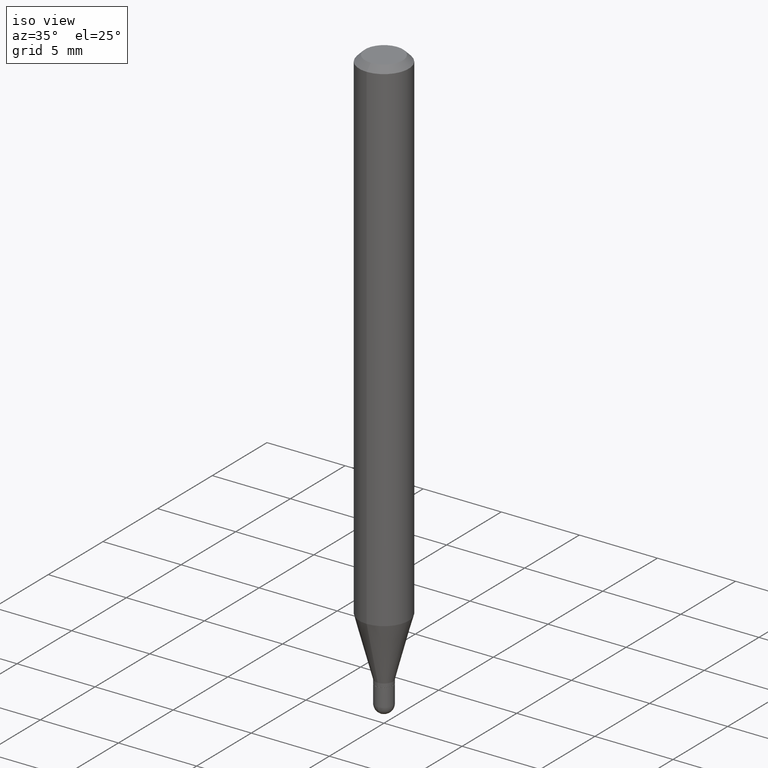
[diagram: clean part render]
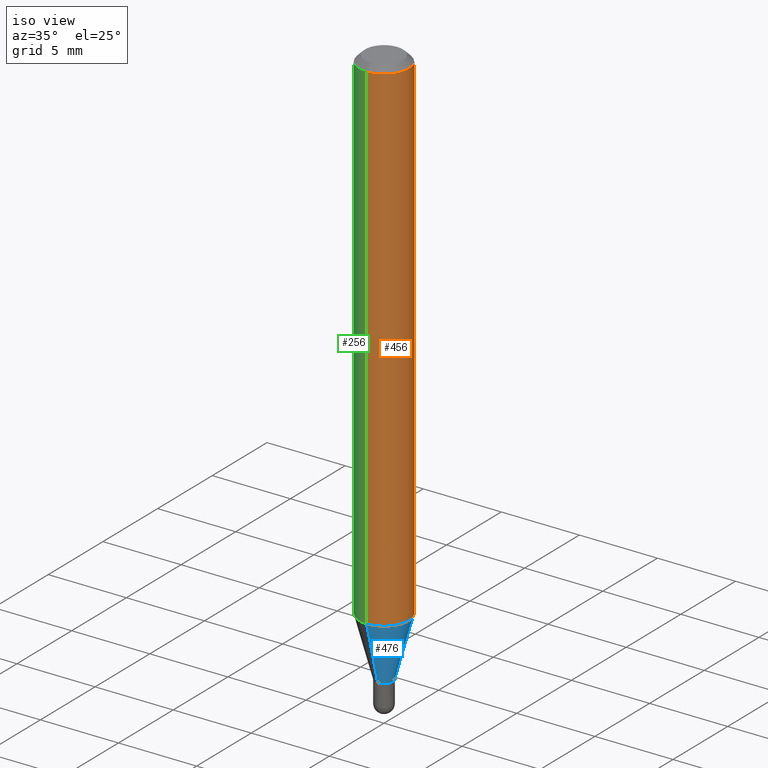
[diagram: same view with three faces highlighted in distinct colors, each labeled with its STEP entity id]
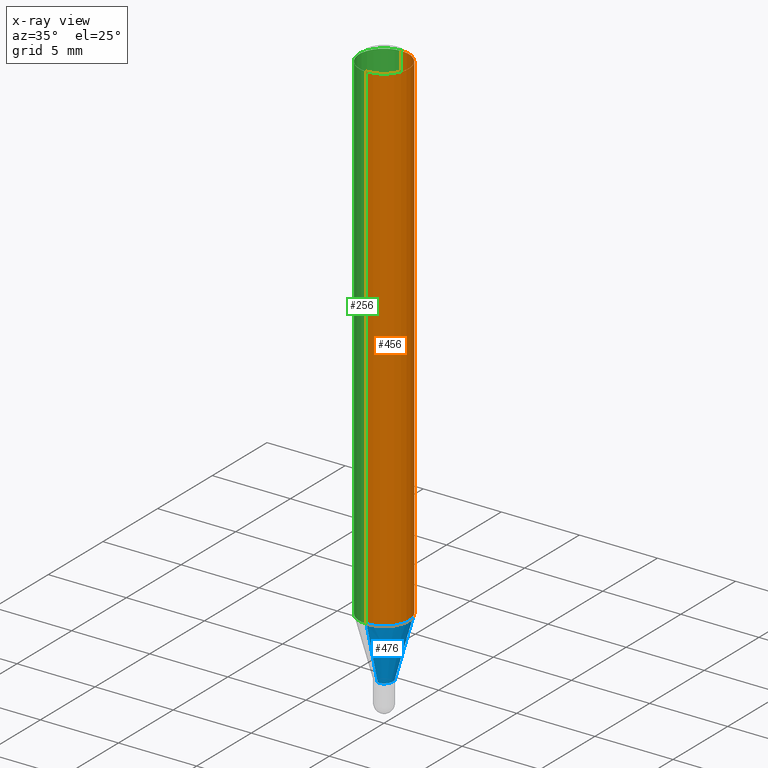
[diagram: x-ray of the same camera — body ghosted, the three highlighted faces saturated]
A machine part, iso view with three faces highlighted in distinct colors.
The next image is the same camera in x-ray (body ghosted, the three faces saturated) — at least one of them is partly hidden behind the body in this view.
Their STEP definitions:

[orange] entity #456 — the highlighted cylindrical surface (edge-blend (fillet) strip) has radius 1.5875 mm, axis along (-0, 0, 1).
#27 = LINE ( 'NONE', #266, #151 ) ;
#30 = DIRECTION ( 'NONE',  ( -2.445453483814696370E-29, 3.491503281349710477E-15, 1.000000000000000000 ) ) ;
#65 = DIRECTION ( 'NONE',  ( -2.445453483814696650E-29, 3.491503281349710871E-15, 1.000000000000000000 ) ) ;
#95 = ORIENTED_EDGE ( 'NONE', *, *, #115, .T. ) ;
#107 = EDGE_CURVE ( 'NONE', #304, #437, #463, .T. ) ;
#113 = DIRECTION ( 'NONE',  ( -2.445453483814696370E-29, 3.491503281349710477E-15, 1.000000000000000000 ) ) ;
#114 = EDGE_CURVE ( 'NONE', #437, #307, #487, .T. ) ;
#115 = EDGE_CURVE ( 'NONE', #272, #307, #27, .T. ) ;
#119 = CARTESIAN_POINT ( 'NONE',  ( 3.668180225722047042E-31, -5.237254922024569684E-17, -0.01500000000000000812 ) ) ;
#120 = EDGE_CURVE ( 'NONE', #304, #272, #127, .T. ) ;
#127 = CIRCLE ( 'NONE', #337, 0.06250000000000000000 ) ;
#136 = ORIENTED_EDGE ( 'NONE', *, *, #114, .F. ) ;
#141 = CARTESIAN_POINT ( 'NONE',  ( -4.364351673553605587E-16, -0.06250000000000446865, -1.272717967697244879 ) ) ;
#151 = VECTOR ( 'NONE', #30, 39.37007874015748143 ) ;
#194 = CARTESIAN_POINT ( 'NONE',  ( -4.364351673553916201E-16, -0.06250000000000000000, 2.182189550843569295E-16 ) ) ;
#227 = AXIS2_PLACEMENT_3D ( 'NONE', #406, #65, #374 ) ;
#247 = VECTOR ( 'NONE', #113, 39.37007874015748143 ) ;
#251 = FACE_OUTER_BOUND ( 'NONE', #448, .T. ) ;
#257 = CYLINDRICAL_SURFACE ( 'NONE', #227, 0.06250000000000000000 ) ;
#264 = DIRECTION ( 'NONE',  ( -6.982962677686265922E-15, -1.000000000000000000, 4.370956789862821150E-15 ) ) ;
#266 = CARTESIAN_POINT ( 'NONE',  ( 4.440892098500625669E-16, 0.06250000000000000000, -2.182189550843569295E-16 ) ) ;
#268 = DIRECTION ( 'NONE',  ( -6.982962677686265922E-15, -1.000000000000000000, 3.483106191921935554E-15 ) ) ;
#272 = VERTEX_POINT ( 'NONE', #431 ) ;
#282 = ORIENTED_EDGE ( 'NONE', *, *, #120, .T. ) ;
#304 = VERTEX_POINT ( 'NONE', #141 ) ;
#307 = VERTEX_POINT ( 'NONE', #309 ) ;
#309 = CARTESIAN_POINT ( 'NONE',  ( 4.440892098500938748E-16, 0.06249999999999995143, -0.01500000000000022669 ) ) ;
#337 = AXIS2_PLACEMENT_3D ( 'NONE', #506, #509, #264 ) ;
#345 = DIRECTION ( 'NONE',  ( -2.445453483814696650E-29, 3.491503281349710871E-15, 1.000000000000000000 ) ) ;
#366 = AXIS2_PLACEMENT_3D ( 'NONE', #119, #345, #268 ) ;
#374 = DIRECTION ( 'NONE',  ( -6.982962677686265922E-15, -1.000000000000000000, 3.491503281349710871E-15 ) ) ;
#403 = CARTESIAN_POINT ( 'NONE',  ( -4.364351673553912750E-16, -0.06250000000000005551, -0.01499999999999979128 ) ) ;
#406 = CARTESIAN_POINT ( 'NONE',  ( 0.000000000000000000, 0.000000000000000000, 0.000000000000000000 ) ) ;
#431 = CARTESIAN_POINT ( 'NONE',  ( 4.440892098500934804E-16, 0.06249999999999552441, -1.272717967697245323 ) ) ;
#437 = VERTEX_POINT ( 'NONE', #403 ) ;
#448 = EDGE_LOOP ( 'NONE', ( #282, #95, #136, #503 ) ) ;
#456 = ADVANCED_FACE ( 'NONE', ( #251 ), #257, .T. ) ;
#463 = LINE ( 'NONE', #194, #247 ) ;
#487 = CIRCLE ( 'NONE', #366, 0.06250000000000000000 ) ;
#503 = ORIENTED_EDGE ( 'NONE', *, *, #107, .F. ) ;
#506 = CARTESIAN_POINT ( 'NONE',  ( 3.112372588018788415E-29, -4.443698960447666136E-15, -1.272717967697245101 ) ) ;
#509 = DIRECTION ( 'NONE',  ( -2.445453483814696650E-29, 3.491503281349710871E-15, 1.000000000000000000 ) ) ;

[blue] entity #476 — the highlighted conical surface has half-angle 15 deg.
#7 = ORIENTED_EDGE ( 'NONE', *, *, #211, .T. ) ;
#35 = VERTEX_POINT ( 'NONE', #381 ) ;
#41 = DIRECTION ( 'NONE',  ( -2.445453483814696650E-29, 3.491503281349710871E-15, 1.000000000000000000 ) ) ;
#54 = CONICAL_SURFACE ( 'NONE', #338, 0.02249999999999992284, 0.2617993877991501850 ) ;
#86 = LINE ( 'NONE', #321, #184 ) ;
#96 = CARTESIAN_POINT ( 'NONE',  ( 3.477434853984498792E-29, -4.964917666079289366E-15, -1.421999999999999931 ) ) ;
#99 = AXIS2_PLACEMENT_3D ( 'NONE', #229, #41, #353 ) ;
#120 = EDGE_CURVE ( 'NONE', #304, #272, #127, .T. ) ;
#121 = ORIENTED_EDGE ( 'NONE', *, *, #120, .F. ) ;
#126 = EDGE_LOOP ( 'NONE', ( #491, #7, #121, #404 ) ) ;
#127 = CIRCLE ( 'NONE', #337, 0.06250000000000000000 ) ;
#141 = CARTESIAN_POINT ( 'NONE',  ( -4.364351673553605587E-16, -0.06250000000000446865, -1.272717967697244879 ) ) ;
#148 = DIRECTION ( 'NONE',  ( -2.445453483814696650E-29, 3.491503281349710871E-15, 1.000000000000000000 ) ) ;
#149 = FACE_OUTER_BOUND ( 'NONE', #126, .T. ) ;
#153 = CARTESIAN_POINT ( 'NONE',  ( -1.571166602479056403E-16, -0.02250000000000488762, -1.421999999999999931 ) ) ;
#184 = VECTOR ( 'NONE', #474, 39.37007874015748143 ) ;
#207 = VERTEX_POINT ( 'NONE', #392 ) ;
#211 = EDGE_CURVE ( 'NONE', #207, #272, #86, .T. ) ;
#229 = CARTESIAN_POINT ( 'NONE',  ( 3.477434853984498792E-29, -4.964917666079289366E-15, -1.421999999999999931 ) ) ;
#253 = LINE ( 'NONE', #153, #277 ) ;
#264 = DIRECTION ( 'NONE',  ( -6.982962677686265922E-15, -1.000000000000000000, 4.370956789862821150E-15 ) ) ;
#272 = VERTEX_POINT ( 'NONE', #431 ) ;
#277 = VECTOR ( 'NONE', #449, 39.37007874015749564 ) ;
#291 = DIRECTION ( 'NONE',  ( -6.982962677686265133E-15, -1.000000000000000000, 0.000000000000000000 ) ) ;
#304 = VERTEX_POINT ( 'NONE', #141 ) ;
#321 = CARTESIAN_POINT ( 'NONE',  ( 1.598721155460567527E-16, 0.02249999999999495806, -1.421999999999999931 ) ) ;
#325 = EDGE_CURVE ( 'NONE', #35, #207, #347, .T. ) ;
#337 = AXIS2_PLACEMENT_3D ( 'NONE', #506, #509, #264 ) ;
#338 = AXIS2_PLACEMENT_3D ( 'NONE', #96, #148, #291 ) ;
#347 = CIRCLE ( 'NONE', #99, 0.02249999999999992284 ) ;
#353 = DIRECTION ( 'NONE',  ( -6.982962677686265133E-15, -1.000000000000000000, 0.000000000000000000 ) ) ;
#381 = CARTESIAN_POINT ( 'NONE',  ( -1.571166602479056403E-16, -0.02250000000000488762, -1.421999999999999931 ) ) ;
#392 = CARTESIAN_POINT ( 'NONE',  ( 3.019806626980753384E-16, 0.02249999999999496153, -1.421999999999999931 ) ) ;
#404 = ORIENTED_EDGE ( 'NONE', *, *, #466, .F. ) ;
#431 = CARTESIAN_POINT ( 'NONE',  ( 4.440892098500934804E-16, 0.06249999999999552441, -1.272717967697245323 ) ) ;
#449 = DIRECTION ( 'NONE',  ( -1.807323732225329350E-15, -0.2588190451025180194, 0.9659258262890689783 ) ) ;
#466 = EDGE_CURVE ( 'NONE', #35, #304, #253, .T. ) ;
#474 = DIRECTION ( 'NONE',  ( 1.839019923739599526E-15, 0.2588190451025248473, 0.9659258262890670910 ) ) ;
#476 = ADVANCED_FACE ( 'NONE', ( #149 ), #54, .T. ) ;
#491 = ORIENTED_EDGE ( 'NONE', *, *, #325, .T. ) ;
#506 = CARTESIAN_POINT ( 'NONE',  ( 3.112372588018788415E-29, -4.443698960447666136E-15, -1.272717967697245101 ) ) ;
#509 = DIRECTION ( 'NONE',  ( -2.445453483814696650E-29, 3.491503281349710871E-15, 1.000000000000000000 ) ) ;

[green] entity #256 — the highlighted cylindrical surface (edge-blend (fillet) strip) has radius 1.5875 mm, axis along (-0, 0, 1).
#26 = ORIENTED_EDGE ( 'NONE', *, *, #496, .T. ) ;
#27 = LINE ( 'NONE', #266, #151 ) ;
#30 = DIRECTION ( 'NONE',  ( -2.445453483814696370E-29, 3.491503281349710477E-15, 1.000000000000000000 ) ) ;
#78 = CIRCLE ( 'NONE', #428, 0.06250000000000000000 ) ;
#81 = DIRECTION ( 'NONE',  ( -6.982962677686265922E-15, -1.000000000000000000, 4.370956789862821150E-15 ) ) ;
#107 = EDGE_CURVE ( 'NONE', #304, #437, #463, .T. ) ;
#113 = DIRECTION ( 'NONE',  ( -2.445453483814696370E-29, 3.491503281349710477E-15, 1.000000000000000000 ) ) ;
#115 = EDGE_CURVE ( 'NONE', #272, #307, #27, .T. ) ;
#125 = DIRECTION ( 'NONE',  ( -2.445453483814696650E-29, 3.491503281349710871E-15, 1.000000000000000000 ) ) ;
#130 = CIRCLE ( 'NONE', #451, 0.06250000000000000000 ) ;
#141 = CARTESIAN_POINT ( 'NONE',  ( -4.364351673553605587E-16, -0.06250000000000446865, -1.272717967697244879 ) ) ;
#151 = VECTOR ( 'NONE', #30, 39.37007874015748143 ) ;
#172 = CARTESIAN_POINT ( 'NONE',  ( 3.668180225722047042E-31, -5.237254922024569684E-17, -0.01500000000000000812 ) ) ;
#174 = CARTESIAN_POINT ( 'NONE',  ( 0.000000000000000000, 0.000000000000000000, 0.000000000000000000 ) ) ;
#179 = EDGE_CURVE ( 'NONE', #307, #437, #130, .T. ) ;
#186 = CARTESIAN_POINT ( 'NONE',  ( 3.112372588018788415E-29, -4.443698960447666136E-15, -1.272717967697245101 ) ) ;
#194 = CARTESIAN_POINT ( 'NONE',  ( -4.364351673553916201E-16, -0.06250000000000000000, 2.182189550843569295E-16 ) ) ;
#196 = CYLINDRICAL_SURFACE ( 'NONE', #367, 0.06250000000000000000 ) ;
#201 = DIRECTION ( 'NONE',  ( -6.982962677686265922E-15, -1.000000000000000000, 3.491503281349710871E-15 ) ) ;
#206 = DIRECTION ( 'NONE',  ( -6.982962677686265922E-15, -1.000000000000000000, 3.483106191921935554E-15 ) ) ;
#226 = ORIENTED_EDGE ( 'NONE', *, *, #107, .T. ) ;
#247 = VECTOR ( 'NONE', #113, 39.37007874015748143 ) ;
#256 = ADVANCED_FACE ( 'NONE', ( #284 ), #196, .T. ) ;
#266 = CARTESIAN_POINT ( 'NONE',  ( 4.440892098500625669E-16, 0.06250000000000000000, -2.182189550843569295E-16 ) ) ;
#272 = VERTEX_POINT ( 'NONE', #431 ) ;
#284 = FACE_OUTER_BOUND ( 'NONE', #450, .T. ) ;
#304 = VERTEX_POINT ( 'NONE', #141 ) ;
#307 = VERTEX_POINT ( 'NONE', #309 ) ;
#309 = CARTESIAN_POINT ( 'NONE',  ( 4.440892098500938748E-16, 0.06249999999999995143, -0.01500000000000022669 ) ) ;
#357 = DIRECTION ( 'NONE',  ( -2.445453483814696650E-29, 3.491503281349710871E-15, 1.000000000000000000 ) ) ;
#367 = AXIS2_PLACEMENT_3D ( 'NONE', #174, #357, #201 ) ;
#394 = ORIENTED_EDGE ( 'NONE', *, *, #115, .F. ) ;
#403 = CARTESIAN_POINT ( 'NONE',  ( -4.364351673553912750E-16, -0.06250000000000005551, -0.01499999999999979128 ) ) ;
#411 = ORIENTED_EDGE ( 'NONE', *, *, #179, .F. ) ;
#426 = DIRECTION ( 'NONE',  ( -2.445453483814696650E-29, 3.491503281349710871E-15, 1.000000000000000000 ) ) ;
#428 = AXIS2_PLACEMENT_3D ( 'NONE', #186, #426, #81 ) ;
#431 = CARTESIAN_POINT ( 'NONE',  ( 4.440892098500934804E-16, 0.06249999999999552441, -1.272717967697245323 ) ) ;
#437 = VERTEX_POINT ( 'NONE', #403 ) ;
#450 = EDGE_LOOP ( 'NONE', ( #394, #26, #226, #411 ) ) ;
#451 = AXIS2_PLACEMENT_3D ( 'NONE', #172, #125, #206 ) ;
#463 = LINE ( 'NONE', #194, #247 ) ;
#496 = EDGE_CURVE ( 'NONE', #272, #304, #78, .T. ) ;